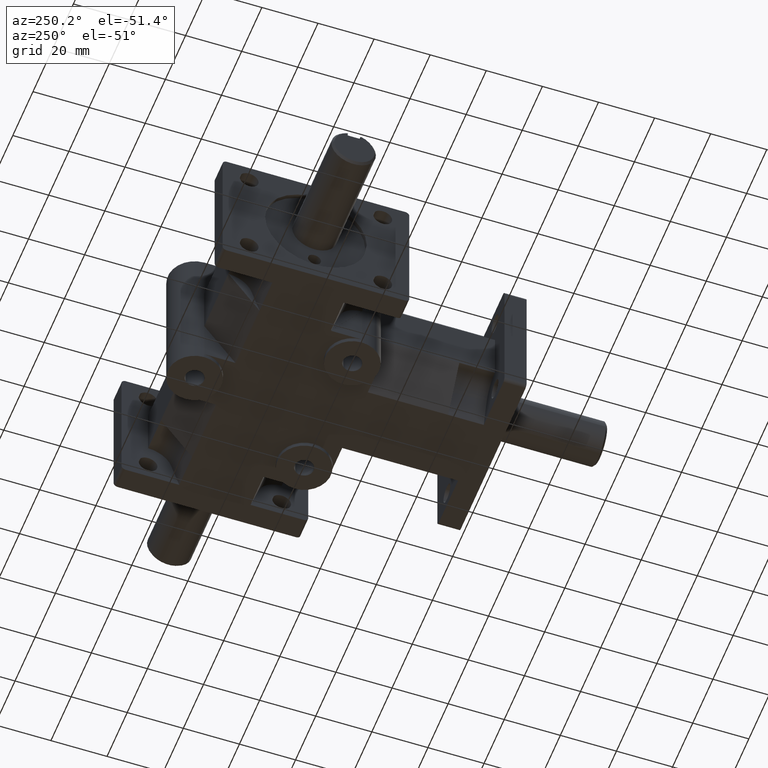
[diagram: clean part render]
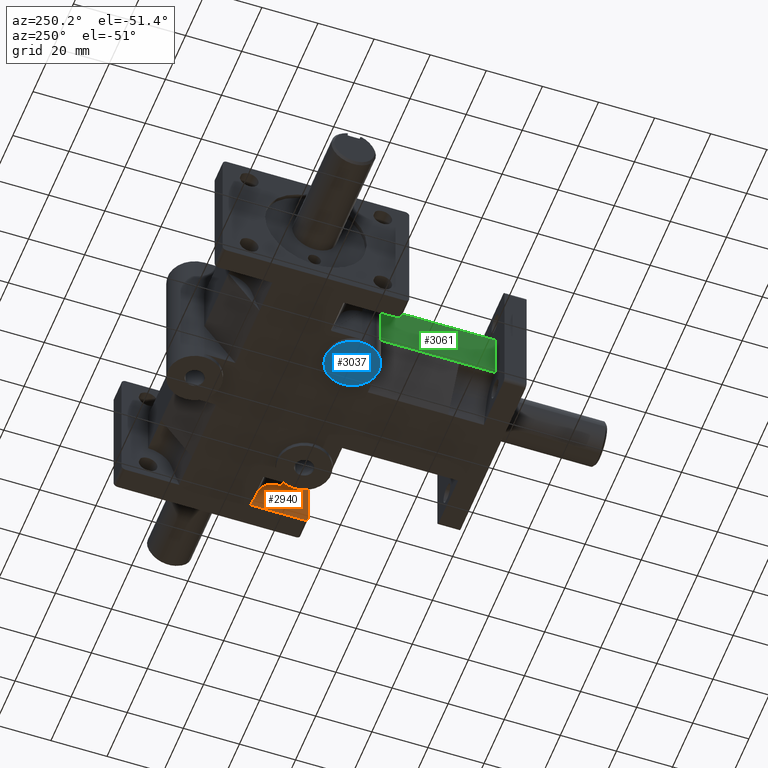
[diagram: same view with three faces highlighted in distinct colors, each labeled with its STEP entity id]
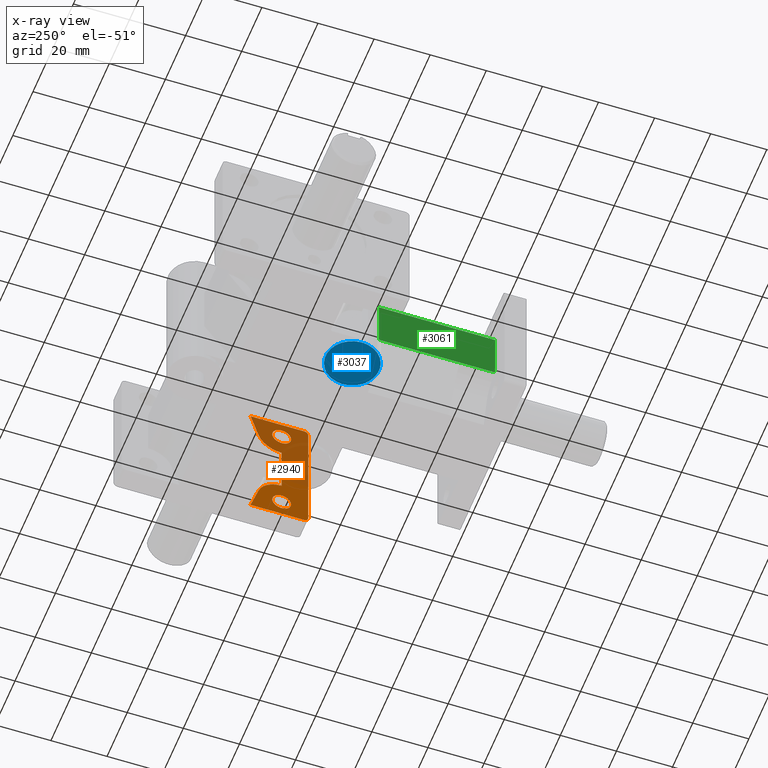
[diagram: x-ray of the same camera — body ghosted, the three highlighted faces saturated]
A machine part, auxiliary view with three faces highlighted in distinct colors.
The next image is the same camera in x-ray (body ghosted, the three faces saturated) — at least one of them is partly hidden behind the body in this view.
Their STEP definitions:

[orange] entity #2940 — the highlighted planar face has unit normal (-1, 0, 0).
#36=FACE_BOUND('',#391,.T.);
#37=FACE_BOUND('',#392,.T.);
#80=PLANE('',#3172);
#210=FACE_OUTER_BOUND('',#390,.T.);
#390=EDGE_LOOP('',(#2110,#2111,#2112,#2113,#2114,#2115,#2116,#2117,#2118,
#2119,#2120,#2121));
#391=EDGE_LOOP('',(#2122));
#392=EDGE_LOOP('',(#2123));
#601=LINE('',#4485,#897);
#603=LINE('',#4489,#899);
#604=LINE('',#4491,#900);
#605=LINE('',#4495,#901);
#606=LINE('',#4497,#902);
#607=LINE('',#4499,#903);
#608=LINE('',#4503,#904);
#609=LINE('',#4504,#905);
#897=VECTOR('',#3594,1.);
#899=VECTOR('',#3598,1.);
#900=VECTOR('',#3599,1.);
#901=VECTOR('',#3602,1.);
#902=VECTOR('',#3603,1.);
#903=VECTOR('',#3604,1.);
#904=VECTOR('',#3607,0.999999999999999);
#905=VECTOR('',#3608,1.);
#1174=CIRCLE('',#3132,0.06);
#1180=CIRCLE('',#3141,0.06);
#1201=CIRCLE('',#3173,0.34);
#1202=CIRCLE('',#3174,0.34);
#1203=CIRCLE('',#3175,0.1325);
#1204=CIRCLE('',#3176,0.1325);
#1304=VERTEX_POINT('',#4357);
#1305=VERTEX_POINT('',#4359);
#1316=VERTEX_POINT('',#4384);
#1317=VERTEX_POINT('',#4386);
#1360=VERTEX_POINT('',#4488);
#1361=VERTEX_POINT('',#4490);
#1362=VERTEX_POINT('',#4492);
#1363=VERTEX_POINT('',#4494);
#1364=VERTEX_POINT('',#4496);
#1365=VERTEX_POINT('',#4498);
#1366=VERTEX_POINT('',#4500);
#1367=VERTEX_POINT('',#4502);
#1368=VERTEX_POINT('',#4505);
#1369=VERTEX_POINT('',#4507);
#1591=EDGE_CURVE('',#1304,#1305,#1174,.T.);
#1603=EDGE_CURVE('',#1316,#1317,#1180,.T.);
#1649=EDGE_CURVE('',#1305,#1316,#601,.T.);
#1651=EDGE_CURVE('',#1304,#1360,#603,.T.);
#1652=EDGE_CURVE('',#1361,#1360,#604,.T.);
#1653=EDGE_CURVE('',#1362,#1361,#1201,.T.);
#1654=EDGE_CURVE('',#1363,#1362,#605,.F.);
#1655=EDGE_CURVE('',#1363,#1364,#606,.T.);
#1656=EDGE_CURVE('',#1365,#1364,#607,.F.);
#1657=EDGE_CURVE('',#1365,#1366,#1202,.T.);
#1658=EDGE_CURVE('',#1366,#1367,#608,.T.);
#1659=EDGE_CURVE('',#1367,#1317,#609,.T.);
#1660=EDGE_CURVE('',#1368,#1368,#1203,.T.);
#1661=EDGE_CURVE('',#1369,#1369,#1204,.T.);
#2110=ORIENTED_EDGE('',*,*,#1591,.F.);
#2111=ORIENTED_EDGE('',*,*,#1651,.T.);
#2112=ORIENTED_EDGE('',*,*,#1652,.F.);
#2113=ORIENTED_EDGE('',*,*,#1653,.F.);
#2114=ORIENTED_EDGE('',*,*,#1654,.F.);
#2115=ORIENTED_EDGE('',*,*,#1655,.T.);
#2116=ORIENTED_EDGE('',*,*,#1656,.F.);
#2117=ORIENTED_EDGE('',*,*,#1657,.T.);
#2118=ORIENTED_EDGE('',*,*,#1658,.T.);
#2119=ORIENTED_EDGE('',*,*,#1659,.T.);
#2120=ORIENTED_EDGE('',*,*,#1603,.F.);
#2121=ORIENTED_EDGE('',*,*,#1649,.F.);
#2122=ORIENTED_EDGE('',*,*,#1660,.T.);
#2123=ORIENTED_EDGE('',*,*,#1661,.T.);
#2940=ADVANCED_FACE('',(#210,#36,#37),#80,.T.);
#3132=AXIS2_PLACEMENT_3D('',#4360,#3483,#3484);
#3141=AXIS2_PLACEMENT_3D('',#4387,#3507,#3508);
#3172=AXIS2_PLACEMENT_3D('',#4487,#3596,#3597);
#3173=AXIS2_PLACEMENT_3D('',#4493,#3600,#3601);
#3174=AXIS2_PLACEMENT_3D('',#4501,#3605,#3606);
#3175=AXIS2_PLACEMENT_3D('',#4506,#3609,#3610);
#3176=AXIS2_PLACEMENT_3D('',#4508,#3611,#3612);
#3483=DIRECTION('center_axis',(1.,0.,0.));
#3484=DIRECTION('ref_axis',(0.,-0.707106781186545,0.70710678118655));
#3507=DIRECTION('center_axis',(1.,0.,0.));
#3508=DIRECTION('ref_axis',(0.,-0.707106781186545,-0.70710678118655));
#3594=DIRECTION('',(0.,0.,-1.));
#3596=DIRECTION('center_axis',(-1.,0.,0.));
#3597=DIRECTION('ref_axis',(0.,1.,0.));
#3598=DIRECTION('',(0.,1.,0.));
#3599=DIRECTION('',(1.8738638224005E-17,0.306035293145686,0.95202016751182));
#3600=DIRECTION('center_axis',(1.,-6.12303176911189E-17,0.));
#3601=DIRECTION('ref_axis',(6.12303176911189E-17,1.,0.));
#3602=DIRECTION('',(0.,-0.59319903804985,-0.805055837353368));
#3603=DIRECTION('',(0.,0.,-1.));
#3604=DIRECTION('',(0.,0.59319903804985,-0.805055837353368));
#3605=DIRECTION('center_axis',(-1.,6.12303176911189E-17,0.));
#3606=DIRECTION('ref_axis',(6.12303176911189E-17,1.,0.));
#3607=DIRECTION('',(1.8738638224005E-17,0.306035293145685,-0.952020167511821));
#3608=DIRECTION('',(0.,-1.,0.));
#3609=DIRECTION('center_axis',(1.,0.,0.));
#3610=DIRECTION('ref_axis',(0.,1.,0.));
#3611=DIRECTION('center_axis',(1.,0.,0.));
#3612=DIRECTION('ref_axis',(0.,1.,0.));
#4357=CARTESIAN_POINT('',(1.815,2.,0.9375));
#4359=CARTESIAN_POINT('',(1.815,1.94,0.8775));
#4360=CARTESIAN_POINT('Origin',(1.815,2.,0.8775));
#4384=CARTESIAN_POINT('',(1.815,1.94,-0.8775));
#4386=CARTESIAN_POINT('',(1.815,2.,-0.9375));
#4387=CARTESIAN_POINT('Origin',(1.815,2.,-0.8775));
#4485=CARTESIAN_POINT('',(1.815,1.94,0.));
#4487=CARTESIAN_POINT('Origin',(1.815,2.3125,0.));
#4488=CARTESIAN_POINT('',(1.815,2.75,0.9375));
#4489=CARTESIAN_POINT('',(1.815,2.36614507691196,0.9375));
#4490=CARTESIAN_POINT('',(1.815,2.63618685695402,0.583448000330467));
#4491=CARTESIAN_POINT('',(1.815,2.63618685695402,0.583448000330467));
#4492=CARTESIAN_POINT('',(1.815,2.31527148121518,0.347511295934889));
#4493=CARTESIAN_POINT('Origin',(1.815,2.3125,0.6875));
#4494=CARTESIAN_POINT('',(1.815,2.3125,0.34375));
#4495=CARTESIAN_POINT('',(1.815,2.33979465888689,0.380792751346499));
#4496=CARTESIAN_POINT('',(1.815,2.3125,-0.34375));
#4497=CARTESIAN_POINT('',(1.815,2.3125,0.));
#4498=CARTESIAN_POINT('',(1.815,2.31527148121518,-0.347511295934889));
#4499=CARTESIAN_POINT('',(1.815,2.33979465888689,-0.380792751346499));
#4500=CARTESIAN_POINT('',(1.815,2.63618685695402,-0.583448000330467));
#4501=CARTESIAN_POINT('Origin',(1.815,2.3125,-0.6875));
#4502=CARTESIAN_POINT('',(1.815,2.75,-0.9375));
#4503=CARTESIAN_POINT('',(1.815,2.63618685695402,-0.583448000330467));
#4504=CARTESIAN_POINT('',(1.815,1.94,-0.9375));
#4505=CARTESIAN_POINT('',(1.815,2.18,-0.6875));
#4506=CARTESIAN_POINT('Origin',(1.815,2.3125,-0.6875));
#4507=CARTESIAN_POINT('',(1.815,2.18,0.6875));
#4508=CARTESIAN_POINT('Origin',(1.815,2.3125,0.6875));

[blue] entity #3037 — the highlighted planar face has unit normal (0, 0, 1).
#50=FACE_BOUND('',#502,.T.);
#142=PLANE('',#3341);
#307=FACE_OUTER_BOUND('',#501,.T.);
#501=EDGE_LOOP('',(#2601));
#502=EDGE_LOOP('',(#2602));
#1260=CIRCLE('',#3322,0.1325);
#1273=CIRCLE('',#3342,0.375);
#1518=VERTEX_POINT('',#4995);
#1535=VERTEX_POINT('',#5045);
#1898=EDGE_CURVE('',#1518,#1518,#1260,.T.);
#1924=EDGE_CURVE('',#1535,#1535,#1273,.T.);
#2601=ORIENTED_EDGE('',*,*,#1924,.F.);
#2602=ORIENTED_EDGE('',*,*,#1898,.T.);
#3037=ADVANCED_FACE('',(#307,#50),#142,.F.);
#3322=AXIS2_PLACEMENT_3D('',#4996,#4078,#4079);
#3341=AXIS2_PLACEMENT_3D('',#5044,#4129,#4130);
#3342=AXIS2_PLACEMENT_3D('',#5046,#4131,#4132);
#4078=DIRECTION('center_axis',(0.,0.,1.));
#4079=DIRECTION('ref_axis',(1.,0.,0.));
#4129=DIRECTION('center_axis',(0.,0.,1.));
#4130=DIRECTION('ref_axis',(-1.,0.,0.));
#4131=DIRECTION('center_axis',(0.,0.,1.));
#4132=DIRECTION('ref_axis',(1.,0.,0.));
#4995=CARTESIAN_POINT('',(-1.07,2.3125,-1.));
#4996=CARTESIAN_POINT('Origin',(-0.9375,2.3125,-1.));
#5044=CARTESIAN_POINT('Origin',(-0.903409090909091,2.3125,-1.));
#5045=CARTESIAN_POINT('',(-1.3125,2.3125,-1.));
#5046=CARTESIAN_POINT('Origin',(-0.9375,2.3125,-1.));

[green] entity #3061 — the highlighted planar face has unit normal (-1, 0, 0).
#162=PLANE('',#3373);
#331=FACE_OUTER_BOUND('',#529,.T.);
#529=EDGE_LOOP('',(#2720,#2721,#2722,#2723));
#622=LINE('',#4543,#918);
#729=LINE('',#4804,#1025);
#828=LINE('',#5116,#1124);
#843=LINE('',#5146,#1139);
#918=VECTOR('',#3639,1.);
#1025=VECTOR('',#3890,1.);
#1124=VECTOR('',#4201,1.);
#1139=VECTOR('',#4240,1.);
#1383=VERTEX_POINT('',#4540);
#1384=VERTEX_POINT('',#4542);
#1466=VERTEX_POINT('',#4802);
#1552=VERTEX_POINT('',#5102);
#1679=EDGE_CURVE('',#1383,#1384,#622,.T.);
#1810=EDGE_CURVE('',#1466,#1383,#729,.T.);
#1959=EDGE_CURVE('',#1466,#1552,#828,.T.);
#1977=EDGE_CURVE('',#1384,#1552,#843,.T.);
#2720=ORIENTED_EDGE('',*,*,#1959,.T.);
#2721=ORIENTED_EDGE('',*,*,#1977,.F.);
#2722=ORIENTED_EDGE('',*,*,#1679,.F.);
#2723=ORIENTED_EDGE('',*,*,#1810,.F.);
#3061=ADVANCED_FACE('',(#331),#162,.T.);
#3373=AXIS2_PLACEMENT_3D('',#5145,#4238,#4239);
#3639=DIRECTION('',(0.,0.,-1.));
#3890=DIRECTION('',(0.,-1.,0.));
#4201=DIRECTION('',(0.,0.,-1.));
#4238=DIRECTION('center_axis',(-1.,0.,0.));
#4239=DIRECTION('ref_axis',(0.,1.,0.));
#4240=DIRECTION('',(0.,1.,0.));
#4540=CARTESIAN_POINT('',(-0.9375,0.31,0.34375));
#4542=CARTESIAN_POINT('',(-0.9375,0.31,-0.34375));
#4543=CARTESIAN_POINT('',(-0.9375,0.31,0.));
#4802=CARTESIAN_POINT('',(-0.9375,1.9375,0.34375));
#4804=CARTESIAN_POINT('',(-0.9375,2.17864507691196,0.34375));
#5102=CARTESIAN_POINT('',(-0.9375,1.9375,-0.34375));
#5116=CARTESIAN_POINT('',(-0.9375,1.9375,0.));
#5145=CARTESIAN_POINT('Origin',(-0.9375,1.9375,0.));
#5146=CARTESIAN_POINT('',(-0.9375,2.17864507691196,-0.34375));